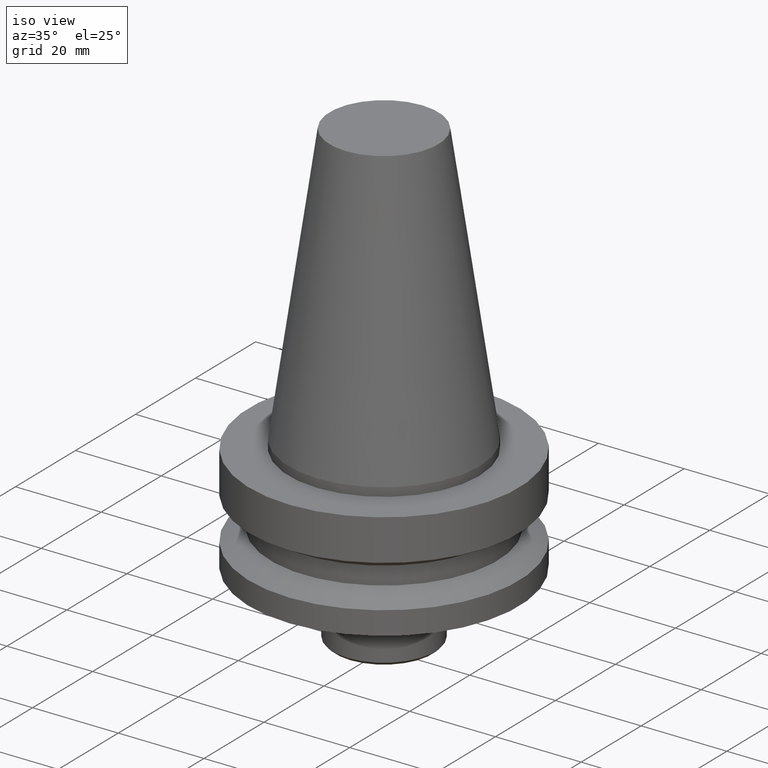
[diagram: clean part render]
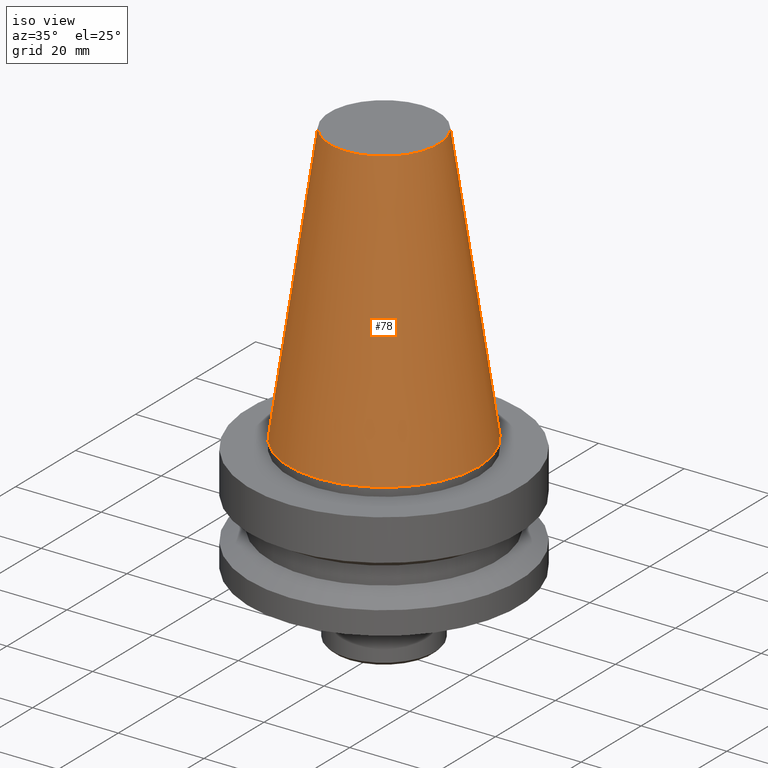
[diagram: tour spotlight — one face highlighted and labeled with its STEP entity id]
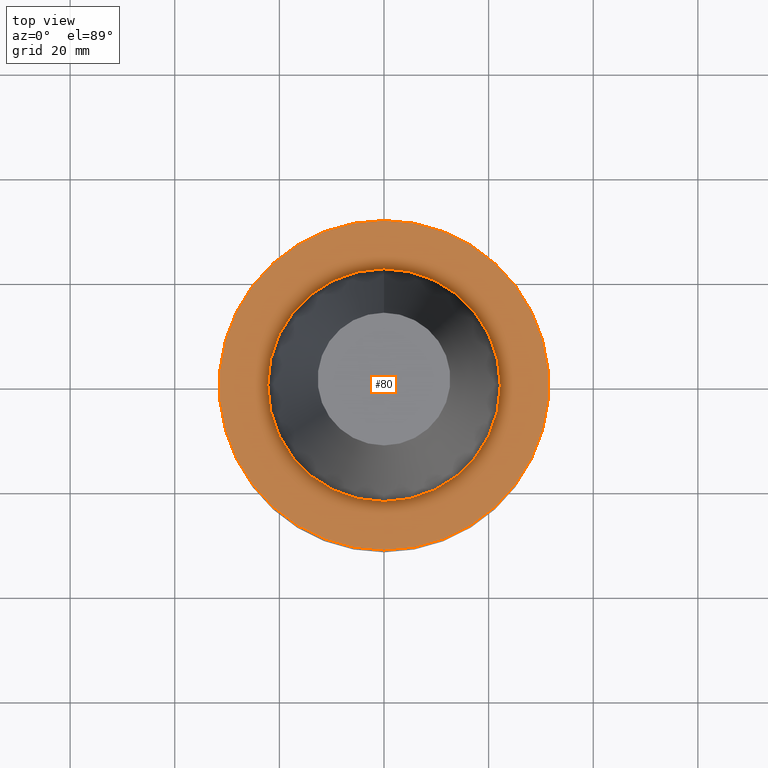
[diagram: tour spotlight — one face highlighted and labeled with its STEP entity id]
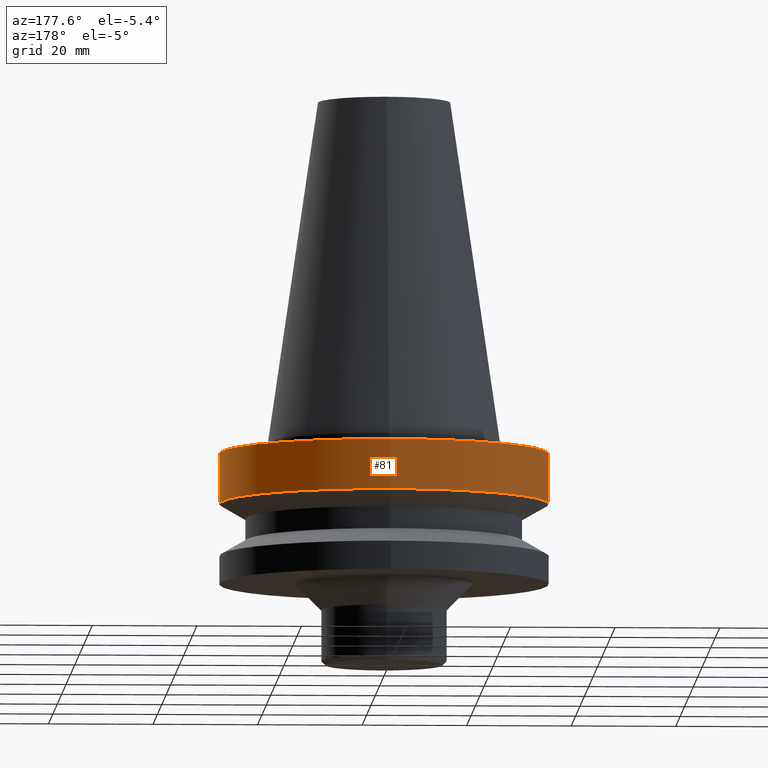
[diagram: tour spotlight — one face highlighted and labeled with its STEP entity id]
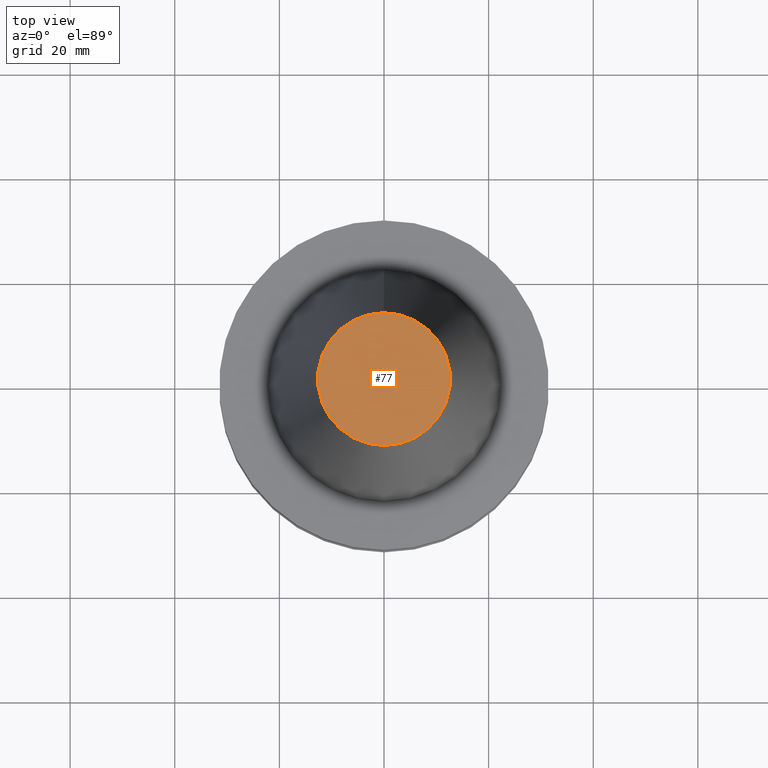
[diagram: tour spotlight — one face highlighted and labeled with its STEP entity id]
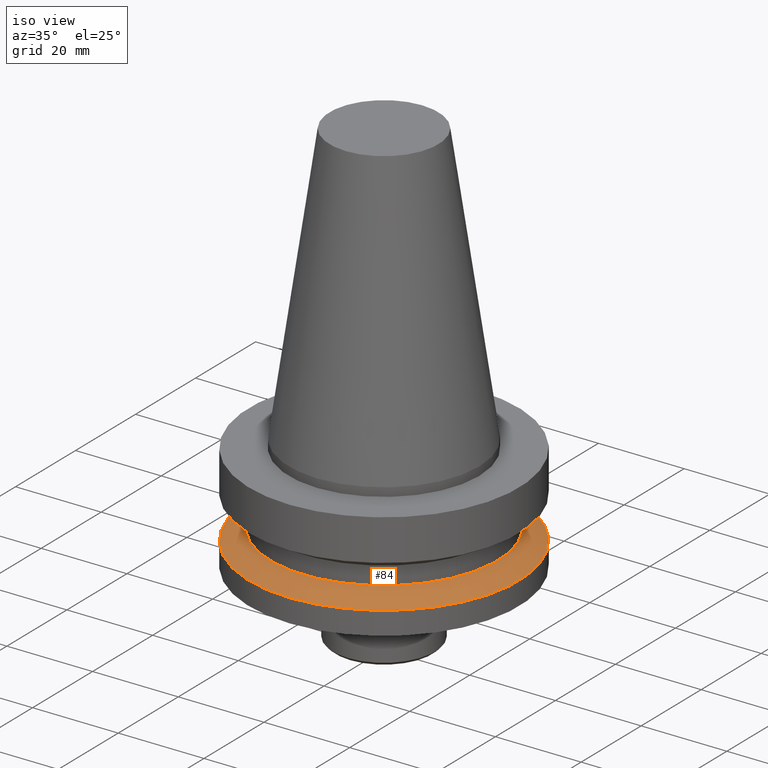
[diagram: tour spotlight — one face highlighted and labeled with its STEP entity id]
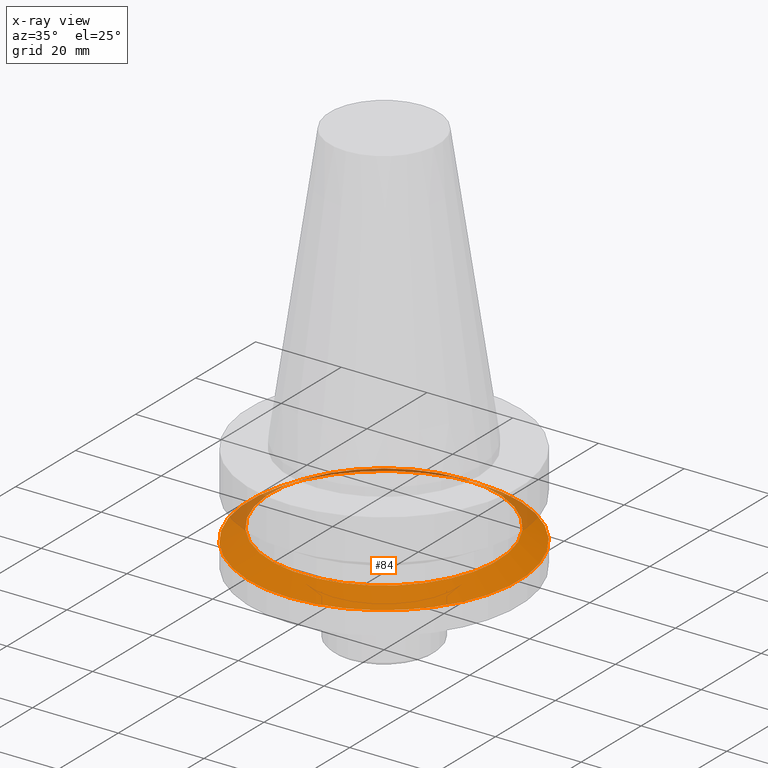
[diagram: x-ray of the same camera — body ghosted, this tour face saturated]
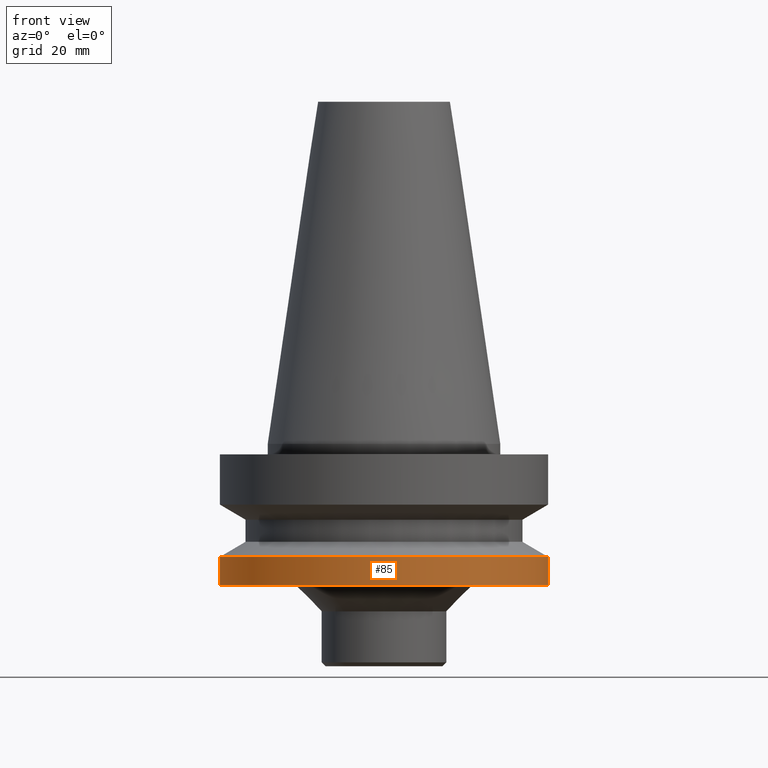
[diagram: tour spotlight — one face highlighted and labeled with its STEP entity id]
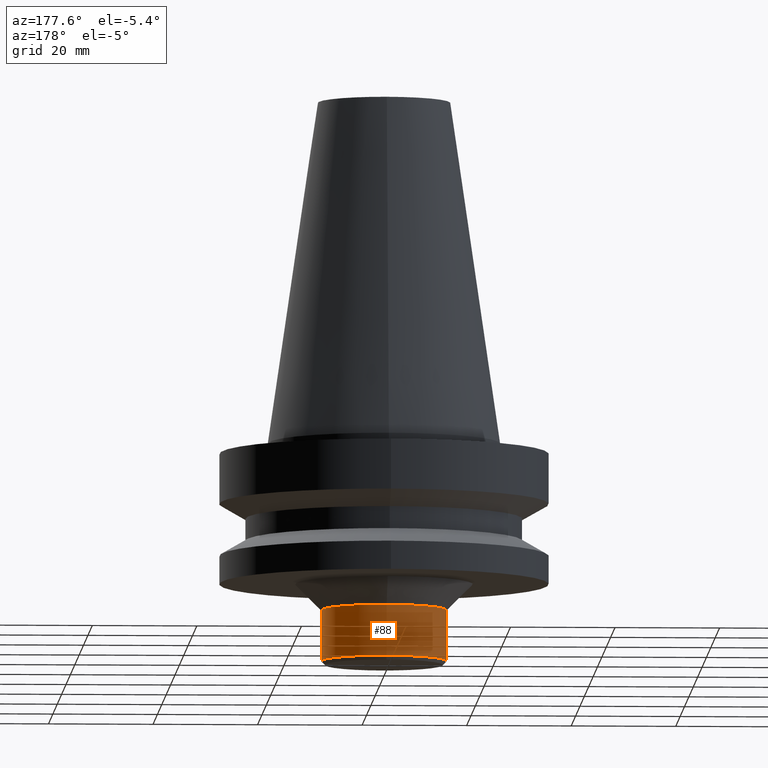
[diagram: tour spotlight — one face highlighted and labeled with its STEP entity id]
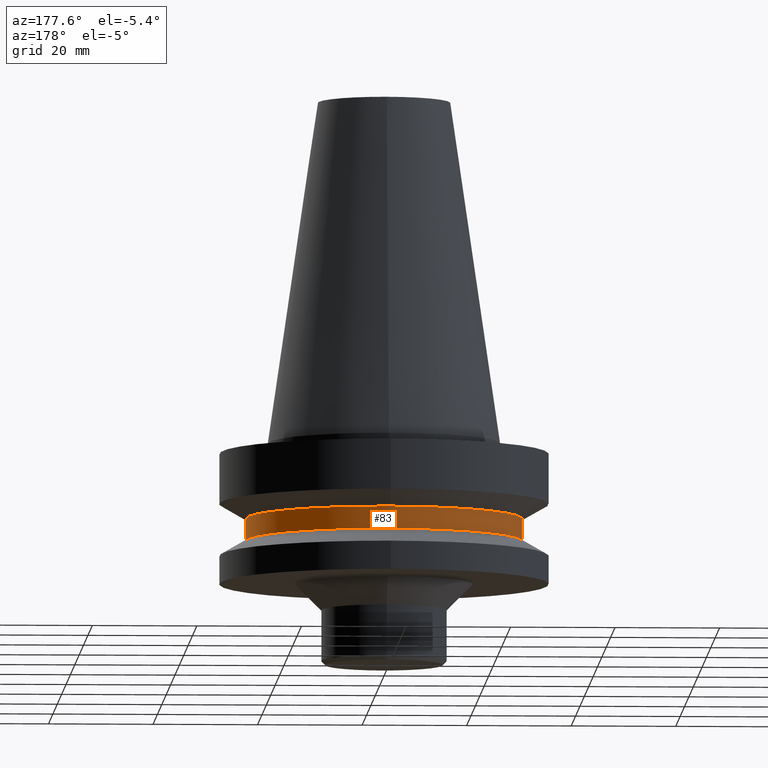
[diagram: tour spotlight — one face highlighted and labeled with its STEP entity id]
A machine part: a face-by-face anatomy tour. The part has 14 B-rep faces; the first image is the clean iso view, then the 8 largest visible faces are spotlighted one at a time (largest first), each with its STEP entity span.

Face 1 — iso view, entity #78. In plain terms, the highlighted conical surface has half-angle 8.297 deg.
Definition (entity closure, byte-faithful):
#78=ADVANCED_FACE('',(#97,#98),#99,.T.);
#97=FACE_BOUND('',#137,.T.);
#98=FACE_BOUND('',#138,.T.);
#99=CONICAL_SURFACE('',#139,17.4562504492561,0.144812484786321);
#137=EDGE_LOOP('',(#183));
#138=EDGE_LOOP('',(#184));
#139=AXIS2_PLACEMENT_3D('',#185,#186,#187);
#183=ORIENTED_EDGE('',*,*,#241,.F.);
#184=ORIENTED_EDGE('',*,*,#240,.T.);
#185=CARTESIAN_POINT('',(-2.00229751660592E-015,-4.00459503321184E-015,32.7));
#186=DIRECTION('',(6.12323399573677E-017,1.22464679914735E-016,-1.0));
#187=DIRECTION('',(-1.23259516440783E-032,1.0,1.22464679914735E-016));
#240=EDGE_CURVE('',#255,#255,#256,.T.);
#241=EDGE_CURVE('',#257,#257,#258,.T.);
#255=VERTEX_POINT('',#281);
#256=CIRCLE('',#282,12.6875008985122);
#257=VERTEX_POINT('',#283);
#258=CIRCLE('',#284,22.225);
#281=CARTESIAN_POINT('',(-4.00459503321185E-015,12.6875008985122,65.4));
#282=AXIS2_PLACEMENT_3D('',#309,#310,#311);
#283=CARTESIAN_POINT('',(-2.73944275289641E-031,22.225,2.721777511105E-015));
#284=AXIS2_PLACEMENT_3D('',#312,#313,#314);
#309=CARTESIAN_POINT('',(-4.00459503321185E-015,-8.00919006642369E-015,65.4));
#310=DIRECTION('',(6.12323399573677E-017,1.22464679914735E-016,-1.0));
#311=DIRECTION('',(-1.23259516440783E-032,1.0,1.22464679914735E-016));
#312=CARTESIAN_POINT('',(0.0,0.0,0.0));
#313=DIRECTION('',(6.12323399573677E-017,1.22464679914735E-016,-1.0));
#314=DIRECTION('',(-1.23259516440783E-032,1.0,1.22464679914735E-016));

Face 2 — top view, entity #80. In plain terms, the highlighted planar face has unit normal (-0, -0, 1).
Definition (entity closure, byte-faithful):
#80=ADVANCED_FACE('',(#103,#104),#105,.T.);
#103=FACE_OUTER_BOUND('',#143,.T.);
#104=FACE_BOUND('',#144,.T.);
#105=PLANE('',#145);
#143=EDGE_LOOP('',(#193));
#144=EDGE_LOOP('',(#194));
#145=AXIS2_PLACEMENT_3D('',#195,#196,#197);
#193=ORIENTED_EDGE('',*,*,#243,.F.);
#194=ORIENTED_EDGE('',*,*,#242,.T.);
#195=CARTESIAN_POINT('',(1.22464679914735E-016,26.8625,-2.0));
#196=DIRECTION('',(-6.12323399573677E-017,-1.22464679914735E-016,1.0));
#197=DIRECTION('',(1.23259516440783E-032,-1.0,-1.22464679914735E-016));
#242=EDGE_CURVE('',#259,#259,#260,.T.);
#243=EDGE_CURVE('',#261,#261,#262,.T.);
#259=VERTEX_POINT('',#285);
#260=CIRCLE('',#286,22.225);
#261=VERTEX_POINT('',#287);
#262=CIRCLE('',#288,31.5);
#285=CARTESIAN_POINT('',(1.22464679914735E-016,22.225,-2.0));
#286=AXIS2_PLACEMENT_3D('',#315,#316,#317);
#287=CARTESIAN_POINT('',(1.22464679914735E-016,31.5,-2.0));
#288=AXIS2_PLACEMENT_3D('',#318,#319,#320);
#315=CARTESIAN_POINT('',(1.22464679914735E-016,2.44929359829471E-016,-2.0));
#316=DIRECTION('',(6.12323399573677E-017,1.22464679914735E-016,-1.0));
#317=DIRECTION('',(-1.23259516440783E-032,1.0,1.22464679914735E-016));
#318=CARTESIAN_POINT('',(1.22464679914735E-016,2.44929359829471E-016,-2.0));
#319=DIRECTION('',(6.12323399573677E-017,1.22464679914735E-016,-1.0));
#320=DIRECTION('',(-1.23259516440783E-032,1.0,1.22464679914735E-016));

Face 3 — auxiliary view, entity #81. In plain terms, the highlighted cylindrical surface (bore or boss wall) has radius 31.5 mm, axis along (-0, -0, 1).
Definition (entity closure, byte-faithful):
#81=ADVANCED_FACE('',(#106,#107),#108,.T.);
#106=FACE_BOUND('',#146,.T.);
#107=FACE_BOUND('',#147,.T.);
#108=CYLINDRICAL_SURFACE('',#148,31.5);
#146=EDGE_LOOP('',(#198));
#147=EDGE_LOOP('',(#199));
#148=AXIS2_PLACEMENT_3D('',#200,#201,#202);
#198=ORIENTED_EDGE('',*,*,#244,.F.);
#199=ORIENTED_EDGE('',*,*,#243,.T.);
#200=CARTESIAN_POINT('',(4.16379922973956E-016,8.32759845947911E-016,-6.80000018395272));
#201=DIRECTION('',(-6.12323399573677E-017,-1.22464679914735E-016,1.0));
#202=DIRECTION('',(-1.23259516440783E-032,1.0,1.22464679914735E-016));
#243=EDGE_CURVE('',#261,#261,#262,.T.);
#244=EDGE_CURVE('',#263,#263,#264,.T.);
#261=VERTEX_POINT('',#287);
#262=CIRCLE('',#288,31.5);
#263=VERTEX_POINT('',#289);
#264=CIRCLE('',#290,31.5);
#287=CARTESIAN_POINT('',(1.22464679914735E-016,31.5,-2.0));
#288=AXIS2_PLACEMENT_3D('',#318,#319,#320);
#289=CARTESIAN_POINT('',(7.10295166033175E-016,31.5,-11.6000003679054));
#290=AXIS2_PLACEMENT_3D('',#321,#322,#323);
#318=CARTESIAN_POINT('',(1.22464679914735E-016,2.44929359829471E-016,-2.0));
#319=DIRECTION('',(6.12323399573677E-017,1.22464679914735E-016,-1.0));
#320=DIRECTION('',(-1.23259516440783E-032,1.0,1.22464679914735E-016));
#321=CARTESIAN_POINT('',(7.10295166033175E-016,1.42059033206635E-015,-11.6000003679054));
#322=DIRECTION('',(6.12323399573677E-017,1.22464679914735E-016,-1.0));
#323=DIRECTION('',(-1.23259516440783E-032,1.0,1.22464679914735E-016));

Face 4 — top view, entity #77. In plain terms, the highlighted planar face has unit normal (-0, -0, 1).
Definition (entity closure, byte-faithful):
#77=ADVANCED_FACE('',(#95),#96,.T.);
#95=FACE_OUTER_BOUND('',#135,.T.);
#96=PLANE('',#136);
#135=EDGE_LOOP('',(#179));
#136=AXIS2_PLACEMENT_3D('',#180,#181,#182);
#179=ORIENTED_EDGE('',*,*,#240,.F.);
#180=CARTESIAN_POINT('',(-4.00459503321185E-015,6.34375044925611,65.4));
#181=DIRECTION('',(-6.12323399573677E-017,-1.22464679914735E-016,1.0));
#182=DIRECTION('',(1.23259516440783E-032,-1.0,-1.22464679914735E-016));
#240=EDGE_CURVE('',#255,#255,#256,.T.);
#255=VERTEX_POINT('',#281);
#256=CIRCLE('',#282,12.6875008985122);
#281=CARTESIAN_POINT('',(-4.00459503321185E-015,12.6875008985122,65.4));
#282=AXIS2_PLACEMENT_3D('',#309,#310,#311);
#309=CARTESIAN_POINT('',(-4.00459503321185E-015,-8.00919006642369E-015,65.4));
#310=DIRECTION('',(6.12323399573677E-017,1.22464679914735E-016,-1.0));
#311=DIRECTION('',(-1.23259516440783E-032,1.0,1.22464679914735E-016));

Face 5 — iso view, entity #84. An x-ray twin of the same camera follows (body ghosted, this face saturated) — the face is partly hidden behind the body. In plain terms, the highlighted conical surface has half-angle 60 deg.
Definition (entity closure, byte-faithful):
#84=ADVANCED_FACE('',(#115,#116),#117,.T.);
#115=FACE_BOUND('',#155,.T.);
#116=FACE_BOUND('',#156,.T.);
#117=CONICAL_SURFACE('',#157,29.0,1.04719757802264);
#155=EDGE_LOOP('',(#213));
#156=EDGE_LOOP('',(#214));
#157=AXIS2_PLACEMENT_3D('',#215,#216,#217);
#213=ORIENTED_EDGE('',*,*,#247,.F.);
#214=ORIENTED_EDGE('',*,*,#246,.T.);
#215=CARTESIAN_POINT('',(1.23423725613309E-015,2.46847451226619E-015,-20.1566240485406));
#216=DIRECTION('',(6.12323399573677E-017,1.22464679914735E-016,-1.0));
#217=DIRECTION('',(-1.23259516440783E-032,1.0,1.22464679914735E-016));
#246=EDGE_CURVE('',#267,#267,#268,.T.);
#247=EDGE_CURVE('',#269,#269,#270,.T.);
#267=VERTEX_POINT('',#293);
#268=CIRCLE('',#294,26.5);
#269=VERTEX_POINT('',#295);
#270=CIRCLE('',#296,31.5);
#293=CARTESIAN_POINT('',(1.14585599171476E-015,26.5,-18.7132484649867));
#294=AXIS2_PLACEMENT_3D('',#327,#328,#329);
#295=CARTESIAN_POINT('',(1.32261852055143E-015,31.5,-21.5999996320946));
#296=AXIS2_PLACEMENT_3D('',#330,#331,#332);
#327=CARTESIAN_POINT('',(1.14585599171476E-015,2.29171198342951E-015,-18.7132484649867));
#328=DIRECTION('',(6.12323399573677E-017,1.22464679914735E-016,-1.0));
#329=DIRECTION('',(-1.23259516440783E-032,1.0,1.22464679914735E-016));
#330=CARTESIAN_POINT('',(1.32261852055143E-015,2.64523704110286E-015,-21.5999996320946));
#331=DIRECTION('',(6.12323399573677E-017,1.22464679914735E-016,-1.0));
#332=DIRECTION('',(-1.23259516440783E-032,1.0,1.22464679914735E-016));

Face 6 — front view, entity #85. In plain terms, the highlighted cylindrical surface (bore or boss wall) has radius 31.5 mm, axis along (-0, -0, 1).
Definition (entity closure, byte-faithful):
#85=ADVANCED_FACE('',(#118,#119),#120,.T.);
#118=FACE_BOUND('',#158,.T.);
#119=FACE_BOUND('',#159,.T.);
#120=CYLINDRICAL_SURFACE('',#160,31.5);
#158=EDGE_LOOP('',(#218));
#159=EDGE_LOOP('',(#219));
#160=AXIS2_PLACEMENT_3D('',#220,#221,#222);
#218=ORIENTED_EDGE('',*,*,#248,.F.);
#219=ORIENTED_EDGE('',*,*,#247,.T.);
#220=CARTESIAN_POINT('',(1.48794584970018E-015,2.97589169940036E-015,-24.2999998160473));
#221=DIRECTION('',(-6.12323399573677E-017,-1.22464679914735E-016,1.0));
#222=DIRECTION('',(-1.23259516440783E-032,1.0,1.22464679914735E-016));
#247=EDGE_CURVE('',#269,#269,#270,.T.);
#248=EDGE_CURVE('',#271,#271,#272,.T.);
#269=VERTEX_POINT('',#295);
#270=CIRCLE('',#296,31.5);
#271=VERTEX_POINT('',#297);
#272=CIRCLE('',#298,31.5);
#295=CARTESIAN_POINT('',(1.32261852055143E-015,31.5,-21.5999996320946));
#296=AXIS2_PLACEMENT_3D('',#330,#331,#332);
#297=CARTESIAN_POINT('',(1.65327317884893E-015,31.5,-27.0));
#298=AXIS2_PLACEMENT_3D('',#333,#334,#335);
#330=CARTESIAN_POINT('',(1.32261852055143E-015,2.64523704110286E-015,-21.5999996320946));
#331=DIRECTION('',(6.12323399573677E-017,1.22464679914735E-016,-1.0));
#332=DIRECTION('',(-1.23259516440783E-032,1.0,1.22464679914735E-016));
#333=CARTESIAN_POINT('',(1.65327317884893E-015,3.30654635769785E-015,-27.0));
#334=DIRECTION('',(6.12323399573677E-017,1.22464679914735E-016,-1.0));
#335=DIRECTION('',(-1.23259516440783E-032,1.0,1.22464679914735E-016));

Face 7 — auxiliary view, entity #88. In plain terms, the highlighted cylindrical surface (bore or boss wall) has radius 12 mm, axis along (-0, -0, 1).
Definition (entity closure, byte-faithful):
#88=ADVANCED_FACE('',(#127,#128),#129,.T.);
#127=FACE_BOUND('',#167,.T.);
#128=FACE_BOUND('',#168,.T.);
#129=CYLINDRICAL_SURFACE('',#169,12.0);
#167=EDGE_LOOP('',(#233));
#168=EDGE_LOOP('',(#234));
#169=AXIS2_PLACEMENT_3D('',#235,#236,#237);
#233=ORIENTED_EDGE('',*,*,#239,.F.);
#234=ORIENTED_EDGE('',*,*,#250,.T.);
#235=CARTESIAN_POINT('',(2.25794253592793E-015,4.51588507185586E-015,-36.875));
#236=DIRECTION('',(-6.12323399573677E-017,-1.22464679914735E-016,1.0));
#237=DIRECTION('',(-1.23259516440783E-032,1.0,1.22464679914735E-016));
#239=EDGE_CURVE('',#253,#253,#254,.T.);
#250=EDGE_CURVE('',#275,#275,#276,.T.);
#253=VERTEX_POINT('',#279);
#254=CIRCLE('',#280,12.0);
#275=VERTEX_POINT('',#301);
#276=CIRCLE('',#302,12.0);
#279=CARTESIAN_POINT('',(2.5564501932201E-015,12.0,-41.75));
#280=AXIS2_PLACEMENT_3D('',#306,#307,#308);
#301=CARTESIAN_POINT('',(1.95943487863577E-015,12.0,-32.0));
#302=AXIS2_PLACEMENT_3D('',#339,#340,#341);
#306=CARTESIAN_POINT('',(2.5564501932201E-015,5.1129003864402E-015,-41.75));
#307=DIRECTION('',(6.12323399573677E-017,1.22464679914735E-016,-1.0));
#308=DIRECTION('',(-1.23259516440783E-032,1.0,1.22464679914735E-016));
#339=CARTESIAN_POINT('',(1.95943487863577E-015,3.91886975727153E-015,-32.0));
#340=DIRECTION('',(6.12323399573677E-017,1.22464679914735E-016,-1.0));
#341=DIRECTION('',(-1.23259516440783E-032,1.0,1.22464679914735E-016));

Face 8 — auxiliary view, entity #83. In plain terms, the highlighted cylindrical surface (bore or boss wall) has radius 26.5 mm, axis along (-0, -0, 1).
Definition (entity closure, byte-faithful):
#83=ADVANCED_FACE('',(#112,#113),#114,.T.);
#112=FACE_BOUND('',#152,.T.);
#113=FACE_BOUND('',#153,.T.);
#114=CYLINDRICAL_SURFACE('',#154,26.5);
#152=EDGE_LOOP('',(#208));
#153=EDGE_LOOP('',(#209));
#154=AXIS2_PLACEMENT_3D('',#210,#211,#212);
#208=ORIENTED_EDGE('',*,*,#246,.F.);
#209=ORIENTED_EDGE('',*,*,#245,.T.);
#210=CARTESIAN_POINT('',(1.0164568432923E-015,2.0329136865846E-015,-16.6));
#211=DIRECTION('',(-6.12323399573677E-017,-1.22464679914735E-016,1.0));
#212=DIRECTION('',(-1.23259516440783E-032,1.0,1.22464679914735E-016));
#245=EDGE_CURVE('',#265,#265,#266,.T.);
#246=EDGE_CURVE('',#267,#267,#268,.T.);
#265=VERTEX_POINT('',#291);
#266=CIRCLE('',#292,26.5);
#267=VERTEX_POINT('',#293);
#268=CIRCLE('',#294,26.5);
#291=CARTESIAN_POINT('',(8.87057694869848E-016,26.5,-14.4867515350132));
#292=AXIS2_PLACEMENT_3D('',#324,#325,#326);
#293=CARTESIAN_POINT('',(1.14585599171476E-015,26.5,-18.7132484649867));
#294=AXIS2_PLACEMENT_3D('',#327,#328,#329);
#324=CARTESIAN_POINT('',(8.87057694869849E-016,1.7741153897397E-015,-14.4867515350132));
#325=DIRECTION('',(6.12323399573677E-017,1.22464679914735E-016,-1.0));
#326=DIRECTION('',(-1.23259516440783E-032,1.0,1.22464679914735E-016));
#327=CARTESIAN_POINT('',(1.14585599171476E-015,2.29171198342951E-015,-18.7132484649867));
#328=DIRECTION('',(6.12323399573677E-017,1.22464679914735E-016,-1.0));
#329=DIRECTION('',(-1.23259516440783E-032,1.0,1.22464679914735E-016));